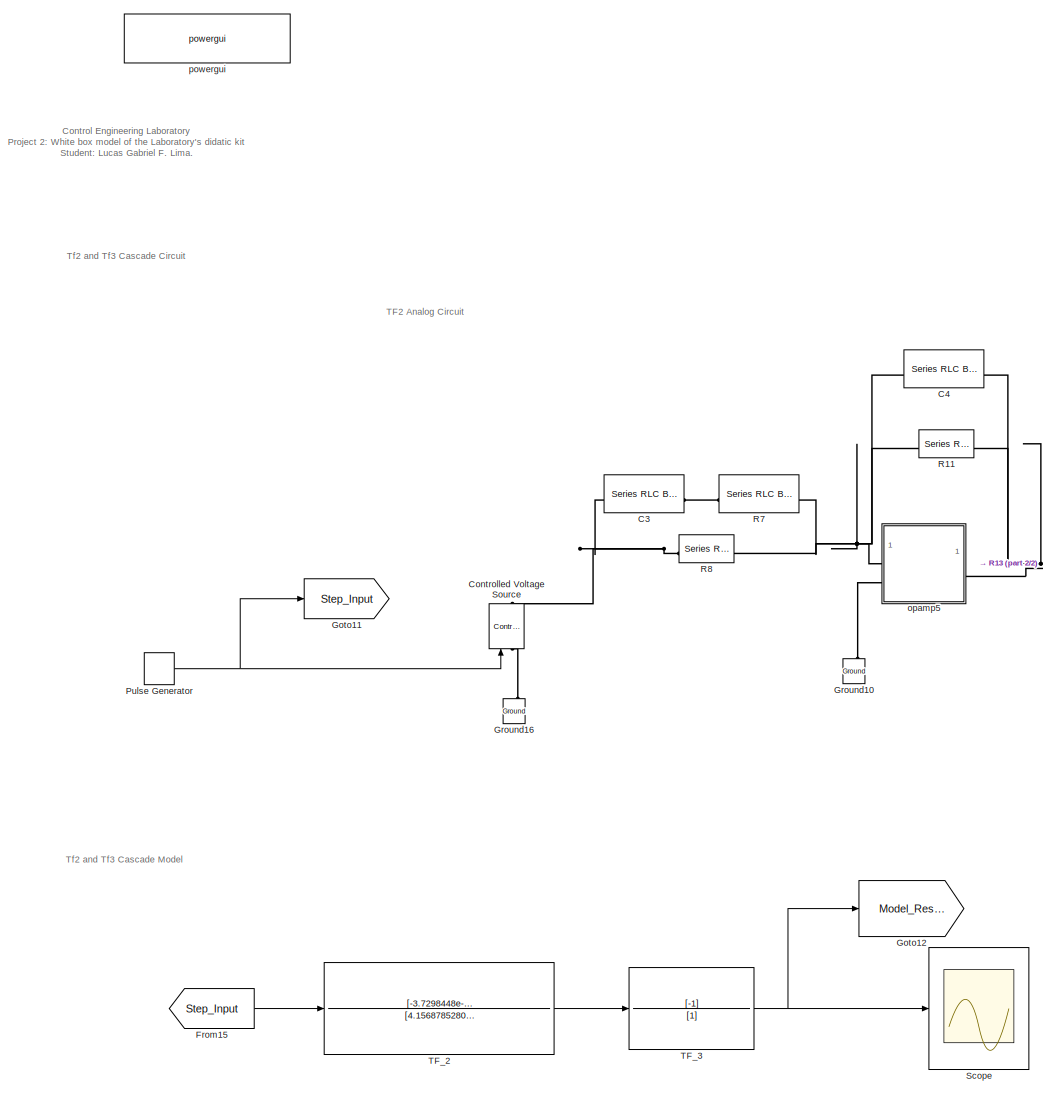
[diagram: root canvas - part 1/2, left side, full height]
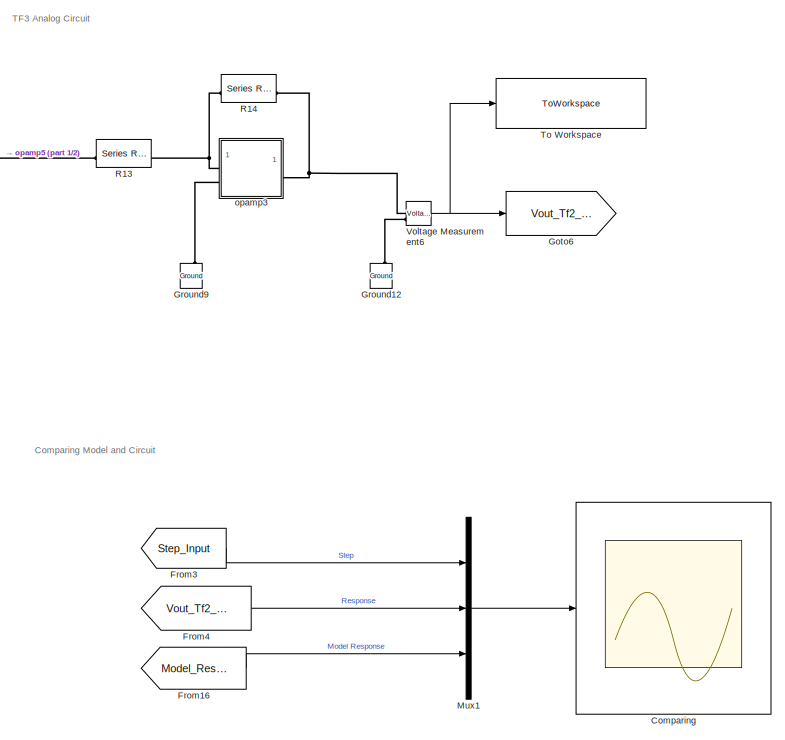
[diagram: root canvas - part 2/2, bottom right region]
MODEL slx_04753be96a6c
KIND model
CONFIG AbsTol = auto
CONFIG EnableMultiTasking = off
CONFIG FixedStep = auto
CONFIG MaxStep = auto
CONFIG MinStep = auto
CONFIG RelTol = 1e-3
CONFIG SampleTimeConstraint = Unconstrained
CONFIG SolverName = VariableStepAuto
CONFIG StartTime = 0.0
CONFIG StopTime = 0.1
BLOCK [Reference] C3  REF=spsSeriesRLCBranchLib/Series RLC Branch
  LibrarySourceBlock = sps_lib/Passives/Series RLC Branch
  SourceBlock = spsSeriesRLCBranchLib/Series RLC Branch
  SourceType = Series RLC Branch
BLOCK [Reference] C4  REF=spsSeriesRLCBranchLib/Series RLC Branch
  LibrarySourceBlock = sps_lib/Passives/Series RLC Branch
  SourceBlock = spsSeriesRLCBranchLib/Series RLC Branch
  SourceType = Series RLC Branch
BLOCK [Scope] Comparing
  Floating = off
  NumInputPorts = 1
  ScopeSpecificationString = Simulink.scopes.TimeScopeBlockCfg('CurrentConfiguration', extmgr.ConfigurationSet(extmgr.Configuration('Core','General UI',true),extmgr.Configuration('Core','Source UI',true),extmgr.Configuration('Sources','WiredSimulink',true,'DataLoggingVariableName','ScopeData1'),extmgr.Configuration('Visuals','Time Domain',true,'SerializedDisplays',{struct('MinYLimReal','-0.44885','MaxYLimReal','1.44913','YLab...<+1891ch>
BLOCK [Reference] Controlled Voltage Source  REF=spsControlledVoltageSourceLib/Controlled Voltage Source
  LibrarySourceBlock = sps_lib/Sources/Controlled Voltage Source
  SourceBlock = spsControlledVoltageSourceLib/Controlled Voltage Source
  SourceType = Controlled Voltage Source
BLOCK [From] From15
  GotoTag = Step_Input
BLOCK [From] From16
  GotoTag = Model_Response
BLOCK [From] From3
  GotoTag = Step_Input
BLOCK [From] From4
  GotoTag = Vout_Tf2_Tf3
BLOCK [Goto] Goto11
  GotoTag = Step_Input
BLOCK [Goto] Goto12
  GotoTag = Model_Response
BLOCK [Goto] Goto6
  GotoTag = Vout_Tf2_Tf3
BLOCK [Reference] Ground10  REF=spsGroundLib/Ground
  LibrarySourceBlock = sps_lib/Utilities/Ground
  NameLocation = right
  SourceBlock = spsGroundLib/Ground
  SourceType = Ground
BLOCK [Reference] Ground12  REF=spsGroundLib/Ground
  LibrarySourceBlock = sps_lib/Utilities/Ground
  NameLocation = right
  SourceBlock = spsGroundLib/Ground
  SourceType = Ground
BLOCK [Reference] Ground16  REF=spsGroundLib/Ground
  LibrarySourceBlock = sps_lib/Utilities/Ground
  NameLocation = right
  SourceBlock = spsGroundLib/Ground
  SourceType = Ground
BLOCK [Reference] Ground9  REF=spsGroundLib/Ground
  LibrarySourceBlock = sps_lib/Utilities/Ground
  NameLocation = right
  SourceBlock = spsGroundLib/Ground
  SourceType = Ground
BLOCK [Mux] Mux1
  DisplayOption = bar
  Inputs = 3
BLOCK [DiscretePulseGenerator] Pulse Generator
  Period = 1/5
  PulseType = Time based
  PulseWidth = 50
BLOCK [Reference] R11  REF=spsSeriesRLCBranchLib/Series RLC Branch
  LibrarySourceBlock = sps_lib/Passives/Series RLC Branch
  SourceBlock = spsSeriesRLCBranchLib/Series RLC Branch
  SourceType = Series RLC Branch
BLOCK [Reference] R13  REF=spsSeriesRLCBranchLib/Series RLC Branch
  LibrarySourceBlock = sps_lib/Passives/Series RLC Branch
  SourceBlock = spsSeriesRLCBranchLib/Series RLC Branch
  SourceType = Series RLC Branch
BLOCK [Reference] R14  REF=spsSeriesRLCBranchLib/Series RLC Branch
  LibrarySourceBlock = sps_lib/Passives/Series RLC Branch
  SourceBlock = spsSeriesRLCBranchLib/Series RLC Branch
  SourceType = Series RLC Branch
BLOCK [Reference] R7  REF=spsSeriesRLCBranchLib/Series RLC Branch
  LibrarySourceBlock = sps_lib/Passives/Series RLC Branch
  SourceBlock = spsSeriesRLCBranchLib/Series RLC Branch
  SourceType = Series RLC Branch
BLOCK [Reference] R8  REF=spsSeriesRLCBranchLib/Series RLC Branch
  LibrarySourceBlock = sps_lib/Passives/Series RLC Branch
  SourceBlock = spsSeriesRLCBranchLib/Series RLC Branch
  SourceType = Series RLC Branch
BLOCK [Scope] Scope
  Floating = off
  NumInputPorts = 1
  ScopeSpecificationString = Simulink.scopes.TimeScopeBlockCfg('CurrentConfiguration', extmgr.ConfigurationSet(extmgr.Configuration('Core','General UI',true),extmgr.Configuration('Core','Source UI',true),extmgr.Configuration('Sources','WiredSimulink',true,'DataLoggingVariableName','ScopeData1'),extmgr.Configuration('Visuals','Time Domain',true,'SerializedDisplays',{struct('MinYLimReal','-0.15742','MaxYLimReal','1.41675','YLab...<+1683ch>
BLOCK [TransferFcn] TF_2
  Denominator = [4.15687852800000e-15 2.96880012000000e-12 1.8612e-10]
  Numerator = [-3.7298448e-12 -1.8612e-10]
BLOCK [TransferFcn] TF_3
  Denominator = [1]
  Numerator = [-1]
BLOCK [ToWorkspace] To Workspace
  FixptAsFi = on
  MaxDataPoints = inf
  SampleTime = -1
  SaveFormat = Structure With Time
  VariableName = Tf23_Response
BLOCK [Reference] Voltage Measurement6  REF=spsVoltageMeasurementLib/Voltage Measurement
  LibrarySourceBlock = sps_lib/Sensors and Measurements/Voltage Measurement
  NameLocation = top
  SourceBlock = spsVoltageMeasurementLib/Voltage Measurement
  SourceType = Voltage Measurement
  UserDataPersistent = on
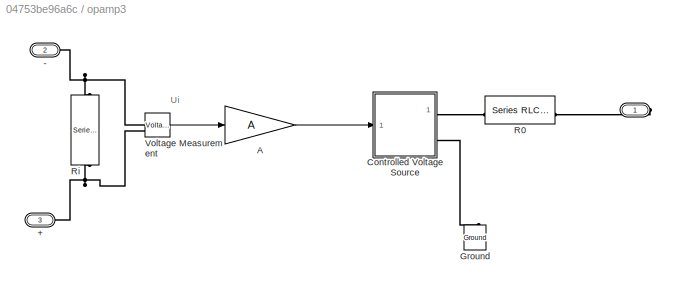
BLOCK [SubSystem] opamp3
BLOCK [PMIOPort] opamp3/ 
  Side = Right
BLOCK [PMIOPort] opamp3/+
  NameLocation = top
  Port = 3
  Side = Left
BLOCK [PMIOPort] opamp3/-
  NameLocation = top
  Port = 2
  Side = Left
BLOCK [Gain] opamp3/A
  Gain = A
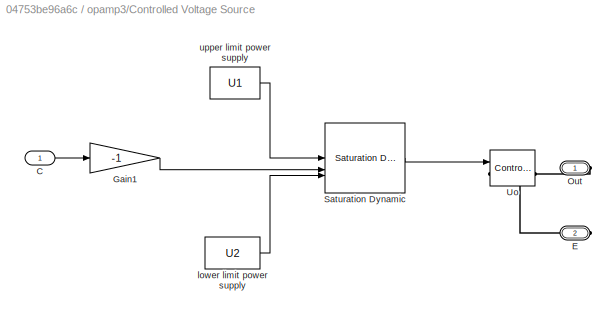
BLOCK [SubSystem] opamp3/Controlled Voltage Source
BLOCK [Inport] opamp3/Controlled Voltage Source/C
BLOCK [PMIOPort] opamp3/Controlled Voltage Source/E
  Port = 2
  Side = Right
BLOCK [Gain] opamp3/Controlled Voltage Source/Gain1
  Gain = -1
BLOCK [PMIOPort] opamp3/Controlled Voltage Source/Out
  Side = Right
BLOCK [Reference] opamp3/Controlled Voltage Source/Saturation Dynamic  REF=simulink/Discontinuities/Saturation
Dynamic
  SourceBlock = simulink/Discontinuities/Saturation\nDynamic
  SourceType = Saturation Dynamic
BLOCK [Reference] opamp3/Controlled Voltage Source/Uo  REF=spsControlledVoltageSourceLib/Controlled Voltage Source
  LibrarySourceBlock = sps_lib/Sources/Controlled Voltage Source
  SourceBlock = spsControlledVoltageSourceLib/Controlled Voltage Source
  SourceType = Controlled Voltage Source
BLOCK [Constant] opamp3/Controlled Voltage Source/lower limit power supply
  Value = U2
BLOCK [Constant] opamp3/Controlled Voltage Source/upper limit power supply
  NameLocation = top
  Value = U1
BLOCK [Reference] opamp3/Ground  REF=spsGroundLib/Ground
  LibrarySourceBlock = sps_lib/Utilities/Ground
  NameLocation = right
  SourceBlock = spsGroundLib/Ground
  SourceType = Ground
BLOCK [Reference] opamp3/R0  REF=spsSeriesRLCBranchLib/Series RLC Branch
  LibrarySourceBlock = sps_lib/Passives/Series RLC Branch
  NameLocation = top
  SourceBlock = spsSeriesRLCBranchLib/Series RLC Branch
  SourceType = Series RLC Branch
BLOCK [Reference] opamp3/Ri  REF=spsSeriesRLCBranchLib/Series RLC Branch
  LibrarySourceBlock = sps_lib/Passives/Series RLC Branch
  NameLocation = left
  SourceBlock = spsSeriesRLCBranchLib/Series RLC Branch
  SourceType = Series RLC Branch
BLOCK [Reference] opamp3/Voltage Measurement  REF=spsVoltageMeasurementLib/Voltage Measurement
  LibrarySourceBlock = sps_lib/Sensors and Measurements/Voltage Measurement
  SourceBlock = spsVoltageMeasurementLib/Voltage Measurement
  SourceType = Voltage Measurement
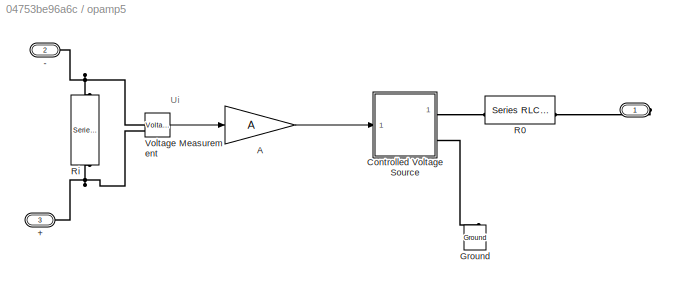
BLOCK [SubSystem] opamp5
BLOCK [PMIOPort] opamp5/ 
  Side = Right
BLOCK [PMIOPort] opamp5/+
  NameLocation = top
  Port = 3
  Side = Left
BLOCK [PMIOPort] opamp5/-
  NameLocation = top
  Port = 2
  Side = Left
BLOCK [Gain] opamp5/A
  Gain = A
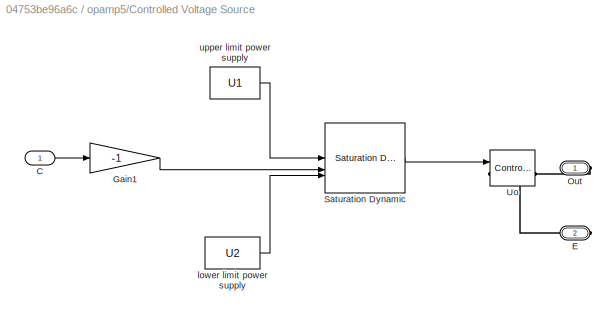
BLOCK [SubSystem] opamp5/Controlled Voltage Source
BLOCK [Inport] opamp5/Controlled Voltage Source/C
BLOCK [PMIOPort] opamp5/Controlled Voltage Source/E
  Port = 2
  Side = Right
BLOCK [Gain] opamp5/Controlled Voltage Source/Gain1
  Gain = -1
BLOCK [PMIOPort] opamp5/Controlled Voltage Source/Out
  Side = Right
BLOCK [Reference] opamp5/Controlled Voltage Source/Saturation Dynamic  REF=simulink/Discontinuities/Saturation
Dynamic
  SourceBlock = simulink/Discontinuities/Saturation\nDynamic
  SourceType = Saturation Dynamic
BLOCK [Reference] opamp5/Controlled Voltage Source/Uo  REF=spsControlledVoltageSourceLib/Controlled Voltage Source
  LibrarySourceBlock = sps_lib/Sources/Controlled Voltage Source
  SourceBlock = spsControlledVoltageSourceLib/Controlled Voltage Source
  SourceType = Controlled Voltage Source
BLOCK [Constant] opamp5/Controlled Voltage Source/lower limit power supply
  Value = U2
BLOCK [Constant] opamp5/Controlled Voltage Source/upper limit power supply
  NameLocation = top
  Value = U1
BLOCK [Reference] opamp5/Ground  REF=spsGroundLib/Ground
  LibrarySourceBlock = sps_lib/Utilities/Ground
  NameLocation = right
  SourceBlock = spsGroundLib/Ground
  SourceType = Ground
BLOCK [Reference] opamp5/R0  REF=spsSeriesRLCBranchLib/Series RLC Branch
  LibrarySourceBlock = sps_lib/Passives/Series RLC Branch
  NameLocation = top
  SourceBlock = spsSeriesRLCBranchLib/Series RLC Branch
  SourceType = Series RLC Branch
BLOCK [Reference] opamp5/Ri  REF=spsSeriesRLCBranchLib/Series RLC Branch
  LibrarySourceBlock = sps_lib/Passives/Series RLC Branch
  NameLocation = left
  SourceBlock = spsSeriesRLCBranchLib/Series RLC Branch
  SourceType = Series RLC Branch
BLOCK [Reference] opamp5/Voltage Measurement  REF=spsVoltageMeasurementLib/Voltage Measurement
  LibrarySourceBlock = sps_lib/Sensors and Measurements/Voltage Measurement
  SourceBlock = spsVoltageMeasurementLib/Voltage Measurement
  SourceType = Voltage Measurement
BLOCK [Reference] powergui  REF=sps_lib/powergui
  LibrarySourceBlock = sps_lib/powergui
  Priority = 1
  SourceBlock = sps_lib/powergui
  SourceType = PSB option menu block
ANNOTATION (root): Control Engineering Laboratory Project 2: White box model of the Laboratory's didatic kit Student: Lucas Gabriel F. Lima.
ANNOTATION (root): Comparing Model and Circuit
ANNOTATION (root): TF2 Analog Circuit
ANNOTATION (root): TF3 Analog Circuit
ANNOTATION (root): Tf2 and Tf3 Cascade Circuit
ANNOTATION (root): Tf2 and Tf3 Cascade Model
ANNOTATION opamp3: Ui
ANNOTATION opamp5: Ui
LINE From15:1 -> TF_2:1
LINE From16:1 -> Mux1:3
LINE From3:1 -> Mux1:1
LINE From4:1 -> Mux1:2
LINE Mux1:1 -> Comparing:1
NET Pulse Generator:1 -> Controlled Voltage Source:1, Goto11:1
LINE TF_2:1 -> TF_3:1
NET TF_3:1 -> Goto12:1, Scope:1
NET Voltage Measurement6:1 -> Goto6:1, To Workspace:1
LINE opamp3/A:1 -> opamp3/Controlled Voltage Source:1
LINE opamp3/Controlled Voltage Source/C:1 -> opamp3/Controlled Voltage Source/Gain1:1
LINE opamp3/Controlled Voltage Source/Gain1:1 -> opamp3/Controlled Voltage Source/Saturation Dynamic:2
LINE opamp3/Controlled Voltage Source/Saturation Dynamic:1 -> opamp3/Controlled Voltage Source/Uo:1
LINE opamp3/Controlled Voltage Source/lower limit power supply:1 -> opamp3/Controlled Voltage Source/Saturation Dynamic:3
LINE opamp3/Controlled Voltage Source/upper limit power supply:1 -> opamp3/Controlled Voltage Source/Saturation Dynamic:1
LINE opamp3/Voltage Measurement:1 -> opamp3/A:1
LINE opamp5/A:1 -> opamp5/Controlled Voltage Source:1
LINE opamp5/Controlled Voltage Source/C:1 -> opamp5/Controlled Voltage Source/Gain1:1
LINE opamp5/Controlled Voltage Source/Gain1:1 -> opamp5/Controlled Voltage Source/Saturation Dynamic:2
LINE opamp5/Controlled Voltage Source/Saturation Dynamic:1 -> opamp5/Controlled Voltage Source/Uo:1
LINE opamp5/Controlled Voltage Source/lower limit power supply:1 -> opamp5/Controlled Voltage Source/Saturation Dynamic:3
LINE opamp5/Controlled Voltage Source/upper limit power supply:1 -> opamp5/Controlled Voltage Source/Saturation Dynamic:1
LINE opamp5/Voltage Measurement:1 -> opamp5/A:1
PNET net1: C3:LConn1 -- Controlled Voltage Source:RConn1 -- R8:LConn1
PLINE C3:RConn1 -- R7:LConn1
PNET net2: C4:LConn1 -- R11:LConn1 -- R7:RConn1 -- R8:RConn1 -- opamp5:LConn1
PNET net3: C4:RConn1 -- R11:RConn1 -- R13:LConn1 -- opamp5:RConn1
PLINE Controlled Voltage Source:LConn1 -- Ground16:LConn1
PLINE Ground10:LConn1 -- opamp5:LConn2
PLINE Ground12:LConn1 -- Voltage Measurement6:LConn2
PLINE Ground9:LConn1 -- opamp3:LConn2
PNET net4: R13:RConn1 -- R14:LConn1 -- opamp3:LConn1
PNET net5: R14:RConn1 -- Voltage Measurement6:LConn1 -- opamp3:RConn1
PLINE opamp3/ :RConn1 -- opamp3/R0:LConn1
PNET net6: opamp3/+:RConn1 -- opamp3/Ri:RConn1 -- opamp3/Voltage Measurement:LConn2
PNET net7: opamp3/-:RConn1 -- opamp3/Ri:LConn1 -- opamp3/Voltage Measurement:LConn1
PLINE opamp3/Controlled Voltage Source/E:RConn1 -- opamp3/Controlled Voltage Source/Uo:LConn1
PLINE opamp3/Controlled Voltage Source/Out:RConn1 -- opamp3/Controlled Voltage Source/Uo:RConn1
PLINE opamp3/Controlled Voltage Source:RConn1 -- opamp3/R0:RConn1
PLINE opamp3/Controlled Voltage Source:RConn2 -- opamp3/Ground:LConn1
PLINE opamp5/ :RConn1 -- opamp5/R0:LConn1
PNET net8: opamp5/+:RConn1 -- opamp5/Ri:RConn1 -- opamp5/Voltage Measurement:LConn2
PNET net9: opamp5/-:RConn1 -- opamp5/Ri:LConn1 -- opamp5/Voltage Measurement:LConn1
PLINE opamp5/Controlled Voltage Source/E:RConn1 -- opamp5/Controlled Voltage Source/Uo:LConn1
PLINE opamp5/Controlled Voltage Source/Out:RConn1 -- opamp5/Controlled Voltage Source/Uo:RConn1
PLINE opamp5/Controlled Voltage Source:RConn1 -- opamp5/R0:RConn1
PLINE opamp5/Controlled Voltage Source:RConn2 -- opamp5/Ground:LConn1
note: NET lines group one-source signal fan-out (src -> all destinations, sorted); 1:1 wires keep LINE; PNET lines group multi-terminal physical nets as a canonical sorted terminal list (undirected conserving connections); 2-terminal nets keep the pairwise PLINE form
